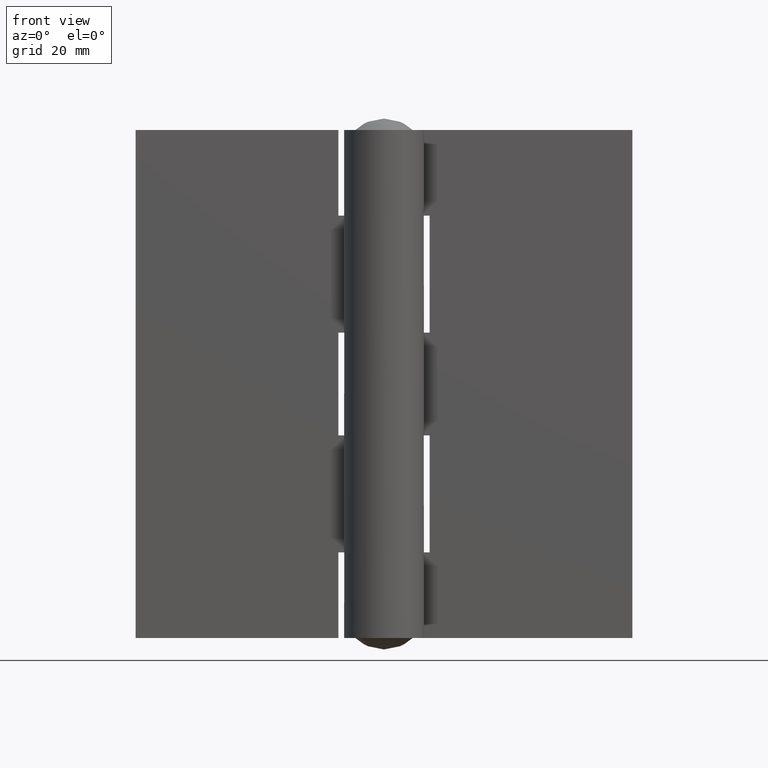
[diagram: clean part render]
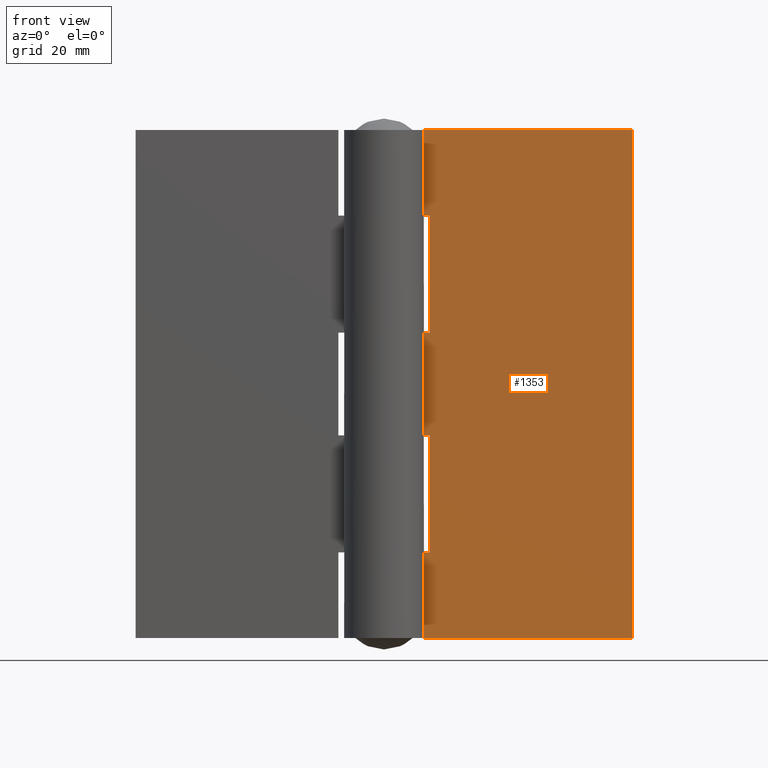
[diagram: same view with one face highlighted and labeled with its STEP entity id]
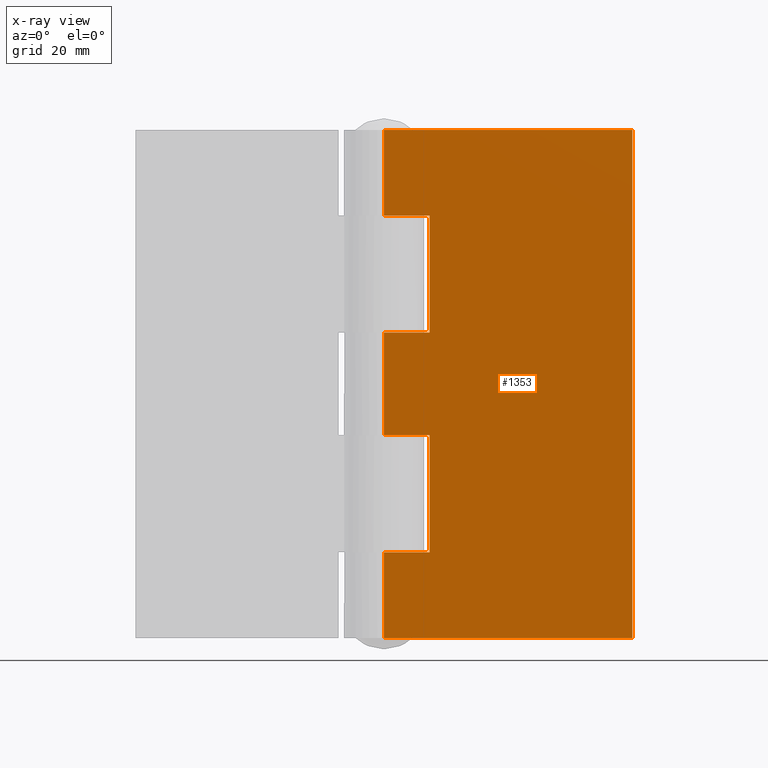
[diagram: x-ray of the same camera — body ghosted, the highlighted face saturated]
A machine part, front view. The second image highlights one B-rep face of the part: STEP entity #1353.
The next image is the same camera in x-ray: the body ghosted, the highlighted face saturated — about 0% of this face is hidden behind the body in this view.
In plain terms, the highlighted face is a freeform B-spline surface patch.
Its self-contained STEP definition (entity closure, byte-faithful):
#796=CARTESIAN_POINT('',(8.0,4.0,35.500000000000000));
#797=VERTEX_POINT('',#796);
#803=CARTESIAN_POINT('',(0.0,4.0,35.500000000000000));
#804=VERTEX_POINT('',#803);
#805=CARTESIAN_POINT('',(8.0,4.0,35.500000000000000));
#806=CARTESIAN_POINT('',(0.0,4.0,35.500000000000000));
#807=QUASI_UNIFORM_CURVE('',1,(#805,#806),.UNSPECIFIED.,.F.,.U.);
#808=EDGE_CURVE('',#797,#804,#807,.T.);
#844=CARTESIAN_POINT('',(8.0,4.0,15.0));
#845=VERTEX_POINT('',#844);
#846=CARTESIAN_POINT('',(8.0,4.0,15.0));
#847=CARTESIAN_POINT('',(8.0,4.0,35.500000000000000));
#848=QUASI_UNIFORM_CURVE('',1,(#846,#847),.UNSPECIFIED.,.F.,.U.);
#849=EDGE_CURVE('',#845,#797,#848,.T.);
#902=CARTESIAN_POINT('',(0.0,4.0,15.0));
#903=VERTEX_POINT('',#902);
#923=CARTESIAN_POINT('',(0.0,4.0,15.0));
#924=CARTESIAN_POINT('',(8.0,4.0,15.0));
#925=QUASI_UNIFORM_CURVE('',1,(#923,#924),.UNSPECIFIED.,.F.,.U.);
#926=EDGE_CURVE('',#903,#845,#925,.T.);
#972=CARTESIAN_POINT('',(0.0,4.0,53.500006999999798));
#973=VERTEX_POINT('',#972);
#993=CARTESIAN_POINT('',(8.0,4.0,53.500006999999798));
#994=VERTEX_POINT('',#993);
#995=CARTESIAN_POINT('',(0.0,4.0,53.500006999999798));
#996=CARTESIAN_POINT('',(8.0,4.0,53.500006999999798));
#997=QUASI_UNIFORM_CURVE('',1,(#995,#996),.UNSPECIFIED.,.F.,.U.);
#998=EDGE_CURVE('',#973,#994,#997,.T.);
#1020=CARTESIAN_POINT('',(8.0,4.0,74.000007000000011));
#1021=VERTEX_POINT('',#1020);
#1022=CARTESIAN_POINT('',(8.0,4.0,53.500006999999798));
#1023=CARTESIAN_POINT('',(8.0,4.0,74.000007000000011));
#1024=QUASI_UNIFORM_CURVE('',1,(#1022,#1023),.UNSPECIFIED.,.F.,.U.);
#1025=EDGE_CURVE('',#994,#1021,#1024,.T.);
#1077=CARTESIAN_POINT('',(0.0,4.0,74.000007000000011));
#1078=VERTEX_POINT('',#1077);
#1079=CARTESIAN_POINT('',(8.0,4.0,74.000007000000011));
#1080=CARTESIAN_POINT('',(0.0,4.0,74.000007000000011));
#1081=QUASI_UNIFORM_CURVE('',1,(#1079,#1080),.UNSPECIFIED.,.F.,.U.);
#1082=EDGE_CURVE('',#1021,#1078,#1081,.T.);
#1148=CARTESIAN_POINT('',(43.500000000000000,4.0,0.0));
#1149=VERTEX_POINT('',#1148);
#1155=CARTESIAN_POINT('',(0.0,4.0,0.0));
#1156=VERTEX_POINT('',#1155);
#1157=CARTESIAN_POINT('',(43.500000000000000,4.0,0.0));
#1158=CARTESIAN_POINT('',(0.0,4.0,0.0));
#1159=QUASI_UNIFORM_CURVE('',1,(#1157,#1158),.UNSPECIFIED.,.F.,.U.);
#1160=EDGE_CURVE('',#1149,#1156,#1159,.T.);
#1226=CARTESIAN_POINT('',(0.0,4.0,89.000007000000011));
#1227=VERTEX_POINT('',#1226);
#1247=CARTESIAN_POINT('',(43.500000000000000,4.0,89.000007000000011));
#1248=VERTEX_POINT('',#1247);
#1249=CARTESIAN_POINT('',(43.500000000000000,4.0,89.000007000000011));
#1250=CARTESIAN_POINT('',(0.0,4.0,89.000007000000011));
#1251=QUASI_UNIFORM_CURVE('',1,(#1249,#1250),.UNSPECIFIED.,.F.,.U.);
#1252=EDGE_CURVE('',#1248,#1227,#1251,.T.);
#1313=CARTESIAN_POINT('',(0.0,4.0,53.500006999999798));
#1314=CARTESIAN_POINT('',(0.0,4.0,35.500000000000000));
#1315=QUASI_UNIFORM_CURVE('',1,(#1313,#1314),.UNSPECIFIED.,.F.,.U.);
#1316=EDGE_CURVE('',#973,#804,#1315,.T.);
#1322=CARTESIAN_POINT('',(-2.172824915688557,4.0,93.445558012619131));
#1323=CARTESIAN_POINT('',(-2.172824915688557,4.0,-4.445552604063251));
#1324=CARTESIAN_POINT('',(45.672826082449490,4.0,93.445558012619131));
#1325=CARTESIAN_POINT('',(45.672826082449490,4.0,-4.445552604063251));
#1326=B_SPLINE_SURFACE_WITH_KNOTS('',1,1,((#1322,#1324),(#1323,#1325)),.UNSPECIFIED.,.F.,.F.,.U.,(2,2),(2,2),(0.0,97.891110616682383),(0.0,47.845650998138048),.UNSPECIFIED.);
#1327=ORIENTED_EDGE('',*,*,#926,.F.);
#1328=CARTESIAN_POINT('',(0.0,4.0,15.0));
#1329=CARTESIAN_POINT('',(0.0,4.0,0.0));
#1330=QUASI_UNIFORM_CURVE('',1,(#1328,#1329),.UNSPECIFIED.,.F.,.U.);
#1331=EDGE_CURVE('',#903,#1156,#1330,.T.);
#1332=ORIENTED_EDGE('',*,*,#1331,.T.);
#1333=ORIENTED_EDGE('',*,*,#1160,.F.);
#1334=CARTESIAN_POINT('',(43.500000000000000,4.0,89.000007000000011));
#1335=CARTESIAN_POINT('',(43.500000000000000,4.0,0.0));
#1336=QUASI_UNIFORM_CURVE('',1,(#1334,#1335),.UNSPECIFIED.,.F.,.U.);
#1337=EDGE_CURVE('',#1248,#1149,#1336,.T.);
#1338=ORIENTED_EDGE('',*,*,#1337,.F.);
#1339=ORIENTED_EDGE('',*,*,#1252,.T.);
#1340=CARTESIAN_POINT('',(0.0,4.0,89.000007000000011));
#1341=CARTESIAN_POINT('',(0.0,4.0,74.000007000000011));
#1342=QUASI_UNIFORM_CURVE('',1,(#1340,#1341),.UNSPECIFIED.,.F.,.U.);
#1343=EDGE_CURVE('',#1227,#1078,#1342,.T.);
#1344=ORIENTED_EDGE('',*,*,#1343,.T.);
#1345=ORIENTED_EDGE('',*,*,#1082,.F.);
#1346=ORIENTED_EDGE('',*,*,#1025,.F.);
#1347=ORIENTED_EDGE('',*,*,#998,.F.);
#1348=ORIENTED_EDGE('',*,*,#1316,.T.);
#1349=ORIENTED_EDGE('',*,*,#808,.F.);
#1350=ORIENTED_EDGE('',*,*,#849,.F.);
#1351=EDGE_LOOP('',(#1327,#1332,#1333,#1338,#1339,#1344,#1345,#1346,#1347,#1348,#1349,#1350));
#1352=FACE_OUTER_BOUND('',#1351,.T.);
#1353=ADVANCED_FACE('',(#1352),#1326,.T.);